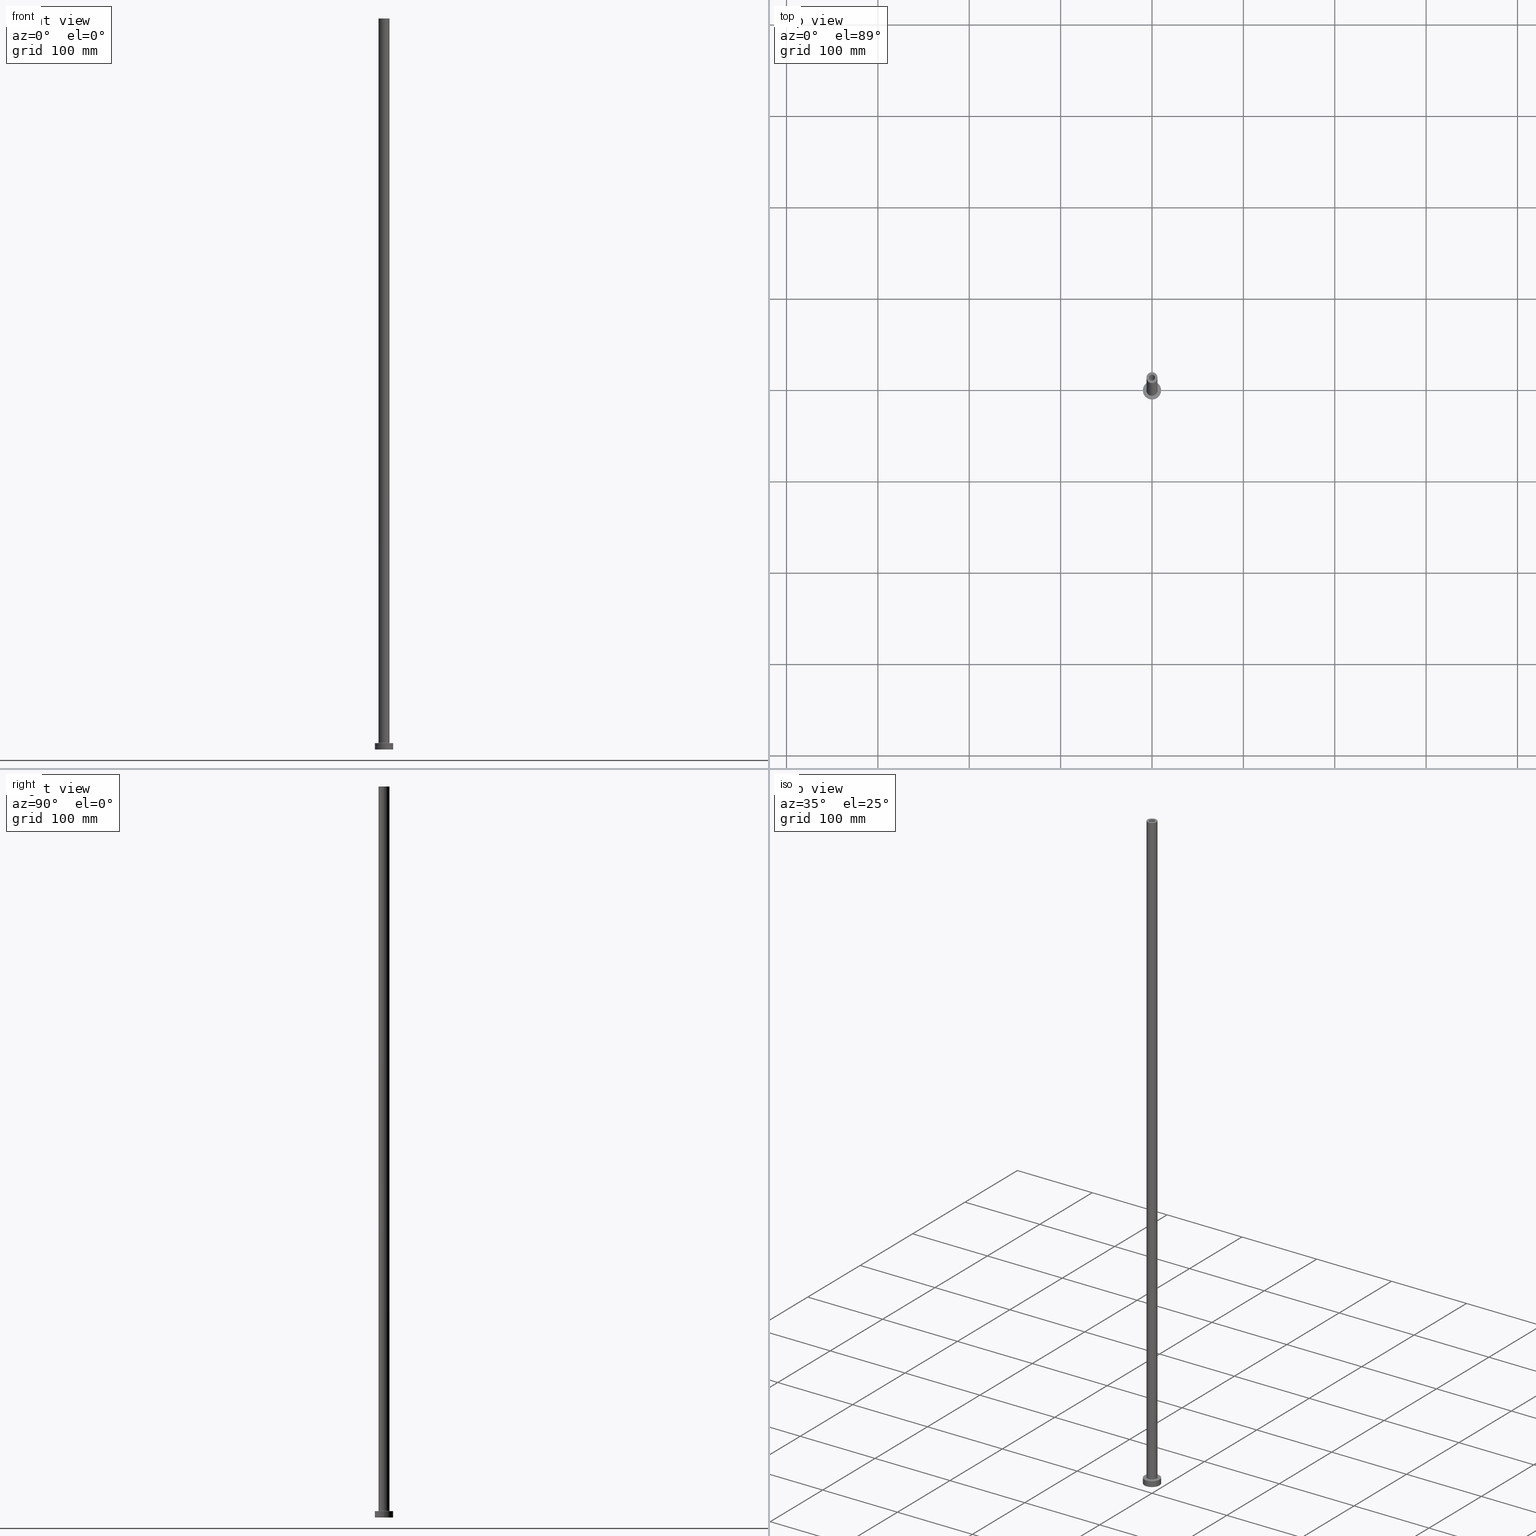
[diagram: canonical four-view strip — front | top / right | iso, engineering-drawing reading convention]
A machine part, canonical four-view strip (front | top / right | iso — engineering-drawing reading convention). The complete STEP part file that produces these views, byte-faithful:
ISO-10303-21;
HEADER;
FILE_DESCRIPTION (( 'STEP AP203' ),
    '1' );
FILE_NAME ('8e6f.STEP',
    '2023-02-13T13:28:46',
    ( '' ),
    ( '' ),
    'SwSTEP 2.0',
    'SolidWorks 2019',
    '' );
FILE_SCHEMA (( 'CONFIG_CONTROL_DESIGN' ));
ENDSEC;

DATA;
#1 = CARTESIAN_POINT ( 'NONE',  ( 0.000000000000000000, 0.000000000000000000, 7.499999999999951150 ) ) ;
#2 = DIRECTION ( 'NONE',  ( 1.000000000000000000, 0.000000000000000000, 0.000000000000000000 ) ) ;
#3 = CARTESIAN_POINT ( 'NONE',  ( 10.00000000000000000, 1.224646799147353256E-15, 7.000000000000000000 ) ) ;
#4 = COORDINATED_UNIVERSAL_TIME_OFFSET ( 1, 0, .AHEAD. ) ;
#5 = EDGE_LOOP ( 'NONE', ( #370, #13, #431, #80 ) ) ;
#6 = DIRECTION ( 'NONE',  ( 1.000000000000000000, 0.000000000000000000, 0.000000000000000000 ) ) ;
#7 = CARTESIAN_POINT ( 'NONE',  ( 0.000000000000000000, 0.000000000000000000, 800.0000000000000000 ) ) ;
#8 = CIRCLE ( 'NONE', #244, 10.00000000000000000 ) ;
#9 = ORIENTED_EDGE ( 'NONE', *, *, #93, .T. ) ;
#10 = EDGE_LOOP ( 'NONE', ( #185, #45 ) ) ;
#11 = ORIENTED_EDGE ( 'NONE', *, *, #269, .F. ) ;
#12 = ORIENTED_EDGE ( 'NONE', *, *, #63, .F. ) ;
#13 = ORIENTED_EDGE ( 'NONE', *, *, #243, .T. ) ;
#14 = CARTESIAN_POINT ( 'NONE',  ( 0.000000000000000000, 0.000000000000000000, 7.499999999999951150 ) ) ;
#15 = CIRCLE ( 'NONE', #72, 3.399999999999999911 ) ;
#16 = EDGE_LOOP ( 'NONE', ( #121, #79, #225, #11 ) ) ;
#17 = CIRCLE ( 'NONE', #53, 3.399999999999999911 ) ;
#18 = DIRECTION ( 'NONE',  ( -1.000000000000000000, 0.000000000000000000, 0.000000000000000000 ) ) ;
#19 = CARTESIAN_POINT ( 'NONE',  ( 3.399999999999999911, 4.163799117100999573E-16, 755.0000000000000000 ) ) ;
#20 = LINE ( 'NONE', #55, #347 ) ;
#21 = AXIS2_PLACEMENT_3D ( 'NONE', #424, #350, #2 ) ;
#22 = CARTESIAN_POINT ( 'NONE',  ( 0.000000000000000000, 0.000000000000000000, 800.0000000000000000 ) ) ;
#23 = DIRECTION ( 'NONE',  ( -1.000000000000000000, 0.000000000000000000, 0.000000000000000000 ) ) ;
#24 = DIRECTION ( 'NONE',  ( 0.000000000000000000, 0.000000000000000000, 1.000000000000000000 ) ) ;
#25 = DIRECTION ( 'NONE',  ( -1.000000000000000000, 0.000000000000000000, 0.000000000000000000 ) ) ;
#26 = CC_DESIGN_DATE_AND_TIME_ASSIGNMENT ( #216, #212, ( #460 ) ) ;
#27 = DIRECTION ( 'NONE',  ( 0.000000000000000000, 0.000000000000000000, 1.000000000000000000 ) ) ;
#28 = AXIS2_PLACEMENT_3D ( 'NONE', #141, #281, #110 ) ;
#29 = DIRECTION ( 'NONE',  ( 0.000000000000000000, -1.000000000000000000, 0.000000000000000000 ) ) ;
#30 = PERSON_AND_ORGANIZATION ( #104, #280 ) ;
#31 = CARTESIAN_POINT ( 'NONE',  ( 0.000000000000000000, 0.000000000000000000, 7.000000000000000000 ) ) ;
#32 = EDGE_CURVE ( 'NONE', #264, #403, #17, .T. ) ;
#33 =( NAMED_UNIT ( * ) SI_UNIT ( $, .STERADIAN. ) SOLID_ANGLE_UNIT ( ) );
#34 = CARTESIAN_POINT ( 'NONE',  ( 0.000000000000000000, 0.000000000000000000, 0.000000000000000000 ) ) ;
#35 = LOCAL_TIME ( 14, 28, 46.00000000000000000, #4 ) ;
#36 = DIRECTION ( 'NONE',  ( -0.000000000000000000, -0.000000000000000000, -1.000000000000000000 ) ) ;
#37 = APPROVAL_STATUS ( 'not_yet_approved' ) ;
#38 = DIRECTION ( 'NONE',  ( -1.000000000000000000, 0.000000000000000000, 0.000000000000000000 ) ) ;
#39 = FACE_OUTER_BOUND ( 'NONE', #40, .T. ) ;
#40 = EDGE_LOOP ( 'NONE', ( #362, #326 ) ) ;
#41 = CC_DESIGN_DATE_AND_TIME_ASSIGNMENT ( #387, #177, ( #438 ) ) ;
#42 = VERTEX_POINT ( 'NONE', #77 ) ;
#43 = VECTOR ( 'NONE', #36, 1000.000000000000000 ) ;
#44 = EDGE_LOOP ( 'NONE', ( #120, #294 ) ) ;
#45 = ORIENTED_EDGE ( 'NONE', *, *, #247, .F. ) ;
#46 = ORIENTED_EDGE ( 'NONE', *, *, #247, .T. ) ;
#47 = DIRECTION ( 'NONE',  ( 1.000000000000000000, 0.000000000000000000, 0.000000000000000000 ) ) ;
#48 = ADVANCED_FACE ( 'NONE', ( #218, #39 ), #323, .T. ) ;
#49 = ORIENTED_EDGE ( 'NONE', *, *, #289, .F. ) ;
#50 = FACE_OUTER_BOUND ( 'NONE', #220, .T. ) ;
#51 = PRODUCT_DEFINITION_SHAPE ( 'NONE', 'NONE',  #460 ) ;
#52 = CIRCLE ( 'NONE', #372, 6.000000000000000888 ) ;
#53 = AXIS2_PLACEMENT_3D ( 'NONE', #363, #253, #394 ) ;
#54 = CARTESIAN_POINT ( 'NONE',  ( 0.000000000000000000, 0.000000000000000000, 800.0000000000000000 ) ) ;
#55 = CARTESIAN_POINT ( 'NONE',  ( 10.00000000000000000, 1.224646799147353256E-15, 7.000000000000000000 ) ) ;
#56 = EDGE_CURVE ( 'NONE', #403, #401, #268, .T. ) ;
#57 = DIRECTION ( 'NONE',  ( -0.000000000000000000, -0.000000000000000000, -1.000000000000000000 ) ) ;
#58 = CARTESIAN_POINT ( 'NONE',  ( -3.250000000000000444, 0.000000000000000000, 800.0000000000000000 ) ) ;
#59 = CIRCLE ( 'NONE', #352, 3.250000000000000444 ) ;
#60 = AXIS2_PLACEMENT_3D ( 'NONE', #404, #443, #376 ) ;
#61 = LINE ( 'NONE', #58, #191 ) ;
#62 = CARTESIAN_POINT ( 'NONE',  ( 0.000000000000000000, 0.000000000000000000, 800.0000000000000000 ) ) ;
#63 = EDGE_CURVE ( 'NONE', #398, #158, #271, .T. ) ;
#64 = DIRECTION ( 'NONE',  ( 1.000000000000000000, 0.000000000000000000, 0.000000000000000000 ) ) ;
#65 = VECTOR ( 'NONE', #161, 1000.000000000000000 ) ;
#66 =( NAMED_UNIT ( * ) PLANE_ANGLE_UNIT ( ) SI_UNIT ( $, .RADIAN. ) );
#67 = APPROVAL ( #353, 'NEUR�EN�' ) ;
#68 = CARTESIAN_POINT ( 'NONE',  ( -3.250000000000000444, 0.000000000000000000, 755.0000000000000000 ) ) ;
#69 = APPROVAL_DATE_TIME ( #391, #78 ) ;
#70 = FACE_OUTER_BOUND ( 'NONE', #254, .T. ) ;
#71 = UNCERTAINTY_MEASURE_WITH_UNIT (LENGTH_MEASURE( 1.000000000000000082E-05 ), #176, 'distance_accuracy_value', 'NONE');
#72 = AXIS2_PLACEMENT_3D ( 'NONE', #383, #27, #446 ) ;
#73 = CARTESIAN_POINT ( 'NONE',  ( 0.000000000000000000, 0.000000000000000000, 0.000000000000000000 ) ) ;
#74 = PERSON_AND_ORGANIZATION ( #104, #280 ) ;
#75 = CIRCLE ( 'NONE', #452, 3.250000000000000444 ) ;
#76 = DIRECTION ( 'NONE',  ( -1.000000000000000000, 1.224646799147351482E-16, 0.000000000000000000 ) ) ;
#77 = CARTESIAN_POINT ( 'NONE',  ( 10.00000000000000000, 1.224646799147353256E-15, 0.000000000000000000 ) ) ;
#78 = APPROVAL ( #37, 'NEUR�EN�' ) ;
#79 = ORIENTED_EDGE ( 'NONE', *, *, #235, .T. ) ;
#80 = ORIENTED_EDGE ( 'NONE', *, *, #165, .F. ) ;
#81 = PRODUCT ( '8e6f', '8e6f', '', ( #246 ) ) ;
#82 = APPROVAL_PERSON_ORGANIZATION ( #174, #78, #278 ) ;
#83 = VERTEX_POINT ( 'NONE', #204 ) ;
#84 = ORIENTED_EDGE ( 'NONE', *, *, #243, .F. ) ;
#85 = ADVANCED_FACE ( 'NONE', ( #101, #100 ), #242, .T. ) ;
#86 = ORIENTED_EDGE ( 'NONE', *, *, #160, .F. ) ;
#87 = ORIENTED_EDGE ( 'NONE', *, *, #235, .F. ) ;
#88 = VERTEX_POINT ( 'NONE', #237 ) ;
#89 = DIRECTION ( 'NONE',  ( -1.000000000000000000, 0.000000000000000000, 0.000000000000000000 ) ) ;
#90 = CIRCLE ( 'NONE', #345, 3.250000000000000444 ) ;
#91 = AXIS2_PLACEMENT_3D ( 'NONE', #62, #203, #25 ) ;
#92 = DIRECTION ( 'NONE',  ( -0.000000000000000000, -0.000000000000000000, -1.000000000000000000 ) ) ;
#93 = EDGE_CURVE ( 'NONE', #88, #227, #90, .T. ) ;
#94 = DIRECTION ( 'NONE',  ( 1.000000000000000000, 0.000000000000000000, 0.000000000000000000 ) ) ;
#95 = DIRECTION ( 'NONE',  ( 0.000000000000000000, 0.000000000000000000, 1.000000000000000000 ) ) ;
#96 = CARTESIAN_POINT ( 'NONE',  ( 0.000000000000000000, 0.000000000000000000, 800.0000000000000000 ) ) ;
#97 = LOCAL_TIME ( 14, 28, 46.00000000000000000, #428 ) ;
#98 = EDGE_CURVE ( 'NONE', #403, #264, #15, .T. ) ;
#99 = APPROVAL_PERSON_ORGANIZATION ( #318, #416, #319 ) ;
#100 = FACE_OUTER_BOUND ( 'NONE', #434, .T. ) ;
#101 = FACE_BOUND ( 'NONE', #188, .T. ) ;
#102 = MANIFOLD_SOLID_BREP ( 'Odebrat vysunut�m4', #213 ) ;
#103 = PERSON_AND_ORGANIZATION ( #104, #280 ) ;
#104 = PERSON ( 'NEUR�EN�', 'NEUR�EN�', 'NEUR�EN�', ('NEUR�EN�'), ('NEUR�EN�'), ('NEUR�EN�') ) ;
#105 = PLANE ( 'NONE',  #175 ) ;
#106 = AXIS2_PLACEMENT_3D ( 'NONE', #408, #331, #94 ) ;
#107 = CALENDAR_DATE ( 2023, 13, 2 ) ;
#108 = CARTESIAN_POINT ( 'NONE',  ( -6.500000000000000888, 7.960204194457796463E-16, 7.499999999999951150 ) ) ;
#109 = APPLICATION_PROTOCOL_DEFINITION ( 'international standard', 'config_control_design', 1994, #453 ) ;
#110 = DIRECTION ( 'NONE',  ( 1.000000000000000000, 0.000000000000000000, 0.000000000000000000 ) ) ;
#111 = CARTESIAN_POINT ( 'NONE',  ( 0.000000000000000000, 0.000000000000000000, 0.000000000000000000 ) ) ;
#112 = ADVANCED_FACE ( 'NONE', ( #166, #378 ), #164, .F. ) ;
#113 = COORDINATED_UNIVERSAL_TIME_OFFSET ( 1, 0, .AHEAD. ) ;
#114 = CIRCLE ( 'NONE', #288, 6.000000000000000888 ) ;
#115 = ORIENTED_EDGE ( 'NONE', *, *, #390, .F. ) ;
#116 = COORDINATED_UNIVERSAL_TIME_OFFSET ( 1, 0, .AHEAD. ) ;
#117 = ORIENTED_EDGE ( 'NONE', *, *, #98, .T. ) ;
#118 = VERTEX_POINT ( 'NONE', #379 ) ;
#119 = EDGE_CURVE ( 'NONE', #88, #180, #61, .T. ) ;
#120 = ORIENTED_EDGE ( 'NONE', *, *, #366, .F. ) ;
#121 = ORIENTED_EDGE ( 'NONE', *, *, #306, .F. ) ;
#122 = VECTOR ( 'NONE', #263, 1000.000000000000000 ) ;
#123 = VERTEX_POINT ( 'NONE', #311 ) ;
#124 = CARTESIAN_POINT ( 'NONE',  ( 0.000000000000000000, 0.000000000000000000, 755.0000000000000000 ) ) ;
#125 = ORIENTED_EDGE ( 'NONE', *, *, #165, .T. ) ;
#126 = DIRECTION ( 'NONE',  ( 0.000000000000000000, 0.000000000000000000, 1.000000000000000000 ) ) ;
#127 = ADVANCED_BREP_SHAPE_REPRESENTATION ( '8e6f', ( #102, #21 ), #367 ) ;
#128 = CARTESIAN_POINT ( 'NONE',  ( -6.000000000000000888, 0.000000000000000000, 800.0000000000000000 ) ) ;
#129 = EDGE_CURVE ( 'NONE', #158, #186, #52, .T. ) ;
#130 = AXIS2_PLACEMENT_3D ( 'NONE', #1, #361, #192 ) ;
#131 = CARTESIAN_POINT ( 'NONE',  ( 0.000000000000000000, 0.000000000000000000, 7.000000000000000000 ) ) ;
#132 = CARTESIAN_POINT ( 'NONE',  ( -10.00000000000000000, 0.000000000000000000, 0.000000000000000000 ) ) ;
#133 = CC_DESIGN_PERSON_AND_ORGANIZATION_ASSIGNMENT ( #276, #144, ( #81 ) ) ;
#134 = DIRECTION ( 'NONE',  ( 0.000000000000000000, 0.000000000000000000, 1.000000000000000000 ) ) ;
#135 = LINE ( 'NONE', #209, #43 ) ;
#136 = CARTESIAN_POINT ( 'NONE',  ( 0.000000000000000000, 0.000000000000000000, 7.000000000000000000 ) ) ;
#137 = DESIGN_CONTEXT ( 'detailed design', #304, 'design' ) ;
#138 = CARTESIAN_POINT ( 'NONE',  ( -3.399999999999999911, 0.000000000000000000, 0.000000000000000000 ) ) ;
#139 = COORDINATED_UNIVERSAL_TIME_OFFSET ( 1, 0, .AHEAD. ) ;
#140 = CIRCLE ( 'NONE', #457, 6.000000000000000888 ) ;
#141 = CARTESIAN_POINT ( 'NONE',  ( 0.000000000000000000, 0.000000000000000000, 800.0000000000000000 ) ) ;
#142 = CIRCLE ( 'NONE', #312, 10.00000000000000000 ) ;
#143 = DIRECTION ( 'NONE',  ( 1.000000000000000000, 0.000000000000000000, -0.000000000000000000 ) ) ;
#144 = PERSON_AND_ORGANIZATION_ROLE ( 'design_owner' ) ;
#145 = EDGE_CURVE ( 'NONE', #190, #83, #297, .T. ) ;
#146 = DIRECTION ( 'NONE',  ( 1.000000000000000000, 0.000000000000000000, 0.000000000000000000 ) ) ;
#147 = DATE_AND_TIME ( #421, #35 ) ;
#148 = ORIENTED_EDGE ( 'NONE', *, *, #32, .T. ) ;
#149 = DIRECTION ( 'NONE',  ( 0.000000000000000000, 0.000000000000000000, 1.000000000000000000 ) ) ;
#150 = ORIENTED_EDGE ( 'NONE', *, *, #447, .T. ) ;
#151 = ADVANCED_FACE ( 'NONE', ( #275 ), #340, .F. ) ;
#152 = VERTEX_POINT ( 'NONE', #132 ) ;
#153 = EDGE_LOOP ( 'NONE', ( #400, #84 ) ) ;
#154 = ORIENTED_EDGE ( 'NONE', *, *, #306, .T. ) ;
#155 = ORIENTED_EDGE ( 'NONE', *, *, #145, .F. ) ;
#156 = DIRECTION ( 'NONE',  ( 0.000000000000000000, 0.000000000000000000, 1.000000000000000000 ) ) ;
#157 = AXIS2_PLACEMENT_3D ( 'NONE', #108, #458, #76 ) ;
#158 = VERTEX_POINT ( 'NONE', #411 ) ;
#159 = DIRECTION ( 'NONE',  ( -0.000000000000000000, -0.000000000000000000, -1.000000000000000000 ) ) ;
#160 = EDGE_CURVE ( 'NONE', #123, #398, #140, .T. ) ;
#161 = DIRECTION ( 'NONE',  ( 0.000000000000000000, 0.000000000000000000, -1.000000000000000000 ) ) ;
#162 = DIRECTION ( 'NONE',  ( -1.000000000000000000, 0.000000000000000000, 0.000000000000000000 ) ) ;
#163 = CIRCLE ( 'NONE', #392, 3.399999999999999911 ) ;
#164 = PLANE ( 'NONE',  #333 ) ;
#165 = EDGE_CURVE ( 'NONE', #256, #180, #59, .T. ) ;
#166 = FACE_BOUND ( 'NONE', #440, .T. ) ;
#167 = CARTESIAN_POINT ( 'NONE',  ( 0.000000000000000000, 0.000000000000000000, 755.0000000000000000 ) ) ;
#168 = LOCAL_TIME ( 14, 28, 46.00000000000000000, #139 ) ;
#169 = DIRECTION ( 'NONE',  ( 1.000000000000000000, 0.000000000000000000, -0.000000000000000000 ) ) ;
#170 = ADVANCED_FACE ( 'NONE', ( #241 ), #382, .F. ) ;
#171 = CARTESIAN_POINT ( 'NONE',  ( 3.250000000000000444, 3.980102097228898231E-16, 800.0000000000000000 ) ) ;
#172 = SECURITY_CLASSIFICATION_LEVEL ( 'unclassified' ) ;
#173 = DIRECTION ( 'NONE',  ( 1.000000000000000000, 0.000000000000000000, 0.000000000000000000 ) ) ;
#174 = PERSON_AND_ORGANIZATION ( #104, #280 ) ;
#175 = AXIS2_PLACEMENT_3D ( 'NONE', #250, #317, #143 ) ;
#176 =( LENGTH_UNIT ( ) NAMED_UNIT ( * ) SI_UNIT ( .MILLI., .METRE. ) );
#177 = DATE_TIME_ROLE ( 'classification_date' ) ;
#178 = EDGE_CURVE ( 'NONE', #83, #152, #135, .T. ) ;
#179 = CARTESIAN_POINT ( 'NONE',  ( 0.000000000000000000, 0.000000000000000000, 800.0000000000000000 ) ) ;
#180 = VERTEX_POINT ( 'NONE', #68 ) ;
#181 = CARTESIAN_POINT ( 'NONE',  ( -3.399999999999999911, 0.000000000000000000, 755.0000000000000000 ) ) ;
#182 = ORIENTED_EDGE ( 'NONE', *, *, #315, .F. ) ;
#183 = EDGE_LOOP ( 'NONE', ( #430, #117, #150, #261 ) ) ;
#184 = CIRCLE ( 'NONE', #267, 10.00000000000000000 ) ;
#185 = ORIENTED_EDGE ( 'NONE', *, *, #194, .F. ) ;
#186 = VERTEX_POINT ( 'NONE', #351 ) ;
#187 = VERTEX_POINT ( 'NONE', #138 ) ;
#188 = EDGE_LOOP ( 'NONE', ( #287, #298 ) ) ;
#189 = LINE ( 'NONE', #337, #65 ) ;
#190 = VERTEX_POINT ( 'NONE', #3 ) ;
#191 = VECTOR ( 'NONE', #448, 1000.000000000000000 ) ;
#192 = DIRECTION ( 'NONE',  ( 1.000000000000000000, 0.000000000000000000, 0.000000000000000000 ) ) ;
#193 = AXIS2_PLACEMENT_3D ( 'NONE', #320, #455, #252 ) ;
#194 = EDGE_CURVE ( 'NONE', #152, #42, #184, .T. ) ;
#195 = CC_DESIGN_APPROVAL ( #416, ( #438 ) ) ;
#196 = FACE_OUTER_BOUND ( 'NONE', #301, .T. ) ;
#197 = CYLINDRICAL_SURFACE ( 'NONE', #419, 10.00000000000000000 ) ;
#198 = ADVANCED_FACE ( 'NONE', ( #423, #389 ), #105, .F. ) ;
#199 = DIRECTION ( 'NONE',  ( -0.000000000000000000, -0.000000000000000000, -1.000000000000000000 ) ) ;
#200 = DIRECTION ( 'NONE',  ( -0.000000000000000000, -0.000000000000000000, -1.000000000000000000 ) ) ;
#201 = CIRCLE ( 'NONE', #157, 0.5000000000000004441 ) ;
#202 = CARTESIAN_POINT ( 'NONE',  ( 0.000000000000000000, 0.000000000000000000, 755.0000000000000000 ) ) ;
#203 = DIRECTION ( 'NONE',  ( 0.000000000000000000, 0.000000000000000000, -1.000000000000000000 ) ) ;
#204 = CARTESIAN_POINT ( 'NONE',  ( -10.00000000000000000, 0.000000000000000000, 7.000000000000000000 ) ) ;
#205 = CC_DESIGN_PERSON_AND_ORGANIZATION_ASSIGNMENT ( #456, #459, ( #438 ) ) ;
#206 = TOROIDAL_SURFACE ( 'NONE', #130, 6.500000000000000888, 0.5000000000000000000 ) ;
#207 = DIRECTION ( 'NONE',  ( -0.000000000000000000, -0.000000000000000000, -1.000000000000000000 ) ) ;
#208 = PERSON_AND_ORGANIZATION_ROLE ( 'creator' ) ;
#209 = CARTESIAN_POINT ( 'NONE',  ( -10.00000000000000000, 0.000000000000000000, 7.000000000000000000 ) ) ;
#210 = EDGE_CURVE ( 'NONE', #401, #187, #163, .T. ) ;
#211 = VECTOR ( 'NONE', #449, 1000.000000000000000 ) ;
#212 = DATE_TIME_ROLE ( 'creation_date' ) ;
#213 = CLOSED_SHELL ( 'NONE', ( #358, #310, #441, #396, #279, #343, #85, #198, #262, #48, #296, #151, #112, #170 ) ) ;
#214 = VECTOR ( 'NONE', #159, 1000.000000000000000 ) ;
#215 = DIRECTION ( 'NONE',  ( 1.000000000000000000, 0.000000000000000000, 0.000000000000000000 ) ) ;
#216 = DATE_AND_TIME ( #418, #354 ) ;
#217 = FACE_OUTER_BOUND ( 'NONE', #321, .T. ) ;
#218 = FACE_BOUND ( 'NONE', #153, .T. ) ;
#219 = ORIENTED_EDGE ( 'NONE', *, *, #447, .F. ) ;
#220 = EDGE_LOOP ( 'NONE', ( #182, #115, #257, #429 ) ) ;
#221 = PRODUCT_RELATED_PRODUCT_CATEGORY ( 'detail', '', ( #81 ) ) ;
#222 = AXIS2_PLACEMENT_3D ( 'NONE', #22, #371, #89 ) ;
#223 = ORIENTED_EDGE ( 'NONE', *, *, #178, .F. ) ;
#224 = ORIENTED_EDGE ( 'NONE', *, *, #315, .T. ) ;
#225 = ORIENTED_EDGE ( 'NONE', *, *, #255, .F. ) ;
#226 = EDGE_LOOP ( 'NONE', ( #436, #369 ) ) ;
#227 = VERTEX_POINT ( 'NONE', #171 ) ;
#228 = CYLINDRICAL_SURFACE ( 'NONE', #272, 3.399999999999999911 ) ;
#229 = EDGE_CURVE ( 'NONE', #398, #123, #413, .T. ) ;
#230 = ORIENTED_EDGE ( 'NONE', *, *, #56, .T. ) ;
#231 = FACE_OUTER_BOUND ( 'NONE', #258, .T. ) ;
#232 = AXIS2_PLACEMENT_3D ( 'NONE', #54, #57, #236 ) ;
#233 = CC_DESIGN_SECURITY_CLASSIFICATION ( #438, ( #437 ) ) ;
#234 = FACE_OUTER_BOUND ( 'NONE', #397, .T. ) ;
#235 = EDGE_CURVE ( 'NONE', #186, #364, #201, .T. ) ;
#236 = DIRECTION ( 'NONE',  ( -1.000000000000000000, 0.000000000000000000, 0.000000000000000000 ) ) ;
#237 = CARTESIAN_POINT ( 'NONE',  ( -3.250000000000000444, 0.000000000000000000, 800.0000000000000000 ) ) ;
#238 = AXIS2_PLACEMENT_3D ( 'NONE', #450, #415, #23 ) ;
#239 = DIRECTION ( 'NONE',  ( 0.000000000000000000, 0.000000000000000000, 1.000000000000000000 ) ) ;
#240 = APPROVAL_PERSON_ORGANIZATION ( #348, #67, #357 ) ;
#241 = FACE_OUTER_BOUND ( 'NONE', #5, .T. ) ;
#242 = PLANE ( 'NONE',  #251 ) ;
#243 = EDGE_CURVE ( 'NONE', #227, #88, #334, .T. ) ;
#244 = AXIS2_PLACEMENT_3D ( 'NONE', #305, #156, #47 ) ;
#245 = DIRECTION ( 'NONE',  ( -0.000000000000000000, -0.000000000000000000, -1.000000000000000000 ) ) ;
#246 = MECHANICAL_CONTEXT ( 'NONE', #453, 'mechanical' ) ;
#247 = EDGE_CURVE ( 'NONE', #42, #152, #142, .T. ) ;
#248 = DIRECTION ( 'NONE',  ( 0.000000000000000000, 0.000000000000000000, -1.000000000000000000 ) ) ;
#249 = APPLICATION_PROTOCOL_DEFINITION ( 'international standard', 'config_control_design', 1994, #304 ) ;
#250 = CARTESIAN_POINT ( 'NONE',  ( 0.000000000000000000, 0.000000000000000000, 0.000000000000000000 ) ) ;
#251 = AXIS2_PLACEMENT_3D ( 'NONE', #131, #95, #308 ) ;
#252 = DIRECTION ( 'NONE',  ( 1.000000000000000000, 0.000000000000000000, 0.000000000000000000 ) ) ;
#253 = DIRECTION ( 'NONE',  ( 0.000000000000000000, 0.000000000000000000, 1.000000000000000000 ) ) ;
#254 = EDGE_LOOP ( 'NONE', ( #87, #327, #260, #49 ) ) ;
#255 = EDGE_CURVE ( 'NONE', #118, #364, #444, .T. ) ;
#256 = VERTEX_POINT ( 'NONE', #393 ) ;
#257 = ORIENTED_EDGE ( 'NONE', *, *, #178, .T. ) ;
#258 = EDGE_LOOP ( 'NONE', ( #324, #399, #432, #365 ) ) ;
#259 = AXIS2_PLACEMENT_3D ( 'NONE', #349, #245, #388 ) ;
#260 = ORIENTED_EDGE ( 'NONE', *, *, #269, .T. ) ;
#261 = ORIENTED_EDGE ( 'NONE', *, *, #366, .T. ) ;
#262 = ADVANCED_FACE ( 'NONE', ( #217 ), #277, .T. ) ;
#263 = DIRECTION ( 'NONE',  ( 0.000000000000000000, 0.000000000000000000, -1.000000000000000000 ) ) ;
#264 = VERTEX_POINT ( 'NONE', #181 ) ;
#265 = DIRECTION ( 'NONE',  ( 0.000000000000000000, 0.000000000000000000, 1.000000000000000000 ) ) ;
#266 = CYLINDRICAL_SURFACE ( 'NONE', #232, 6.000000000000000888 ) ;
#267 = AXIS2_PLACEMENT_3D ( 'NONE', #34, #356, #146 ) ;
#268 = LINE ( 'NONE', #414, #211 ) ;
#269 = EDGE_CURVE ( 'NONE', #158, #118, #381, .T. ) ;
#270 = CARTESIAN_POINT ( 'NONE',  ( 0.000000000000000000, 0.000000000000000000, 800.0000000000000000 ) ) ;
#271 = LINE ( 'NONE', #409, #427 ) ;
#272 = AXIS2_PLACEMENT_3D ( 'NONE', #377, #407, #18 ) ;
#273 = CC_DESIGN_PERSON_AND_ORGANIZATION_ASSIGNMENT ( #74, #208, ( #460 ) ) ;
#274 = DIRECTION ( 'NONE',  ( 1.000000000000000000, 0.000000000000000000, 0.000000000000000000 ) ) ;
#275 = FACE_OUTER_BOUND ( 'NONE', #183, .T. ) ;
#276 = PERSON_AND_ORGANIZATION ( #104, #280 ) ;
#277 = CYLINDRICAL_SURFACE ( 'NONE', #380, 6.000000000000000888 ) ;
#278 = APPROVAL_ROLE ( '' ) ;
#279 = ADVANCED_FACE ( 'NONE', ( #314 ), #417, .T. ) ;
#280 = ORGANIZATION ( 'NEUR�EN�', 'NEUR�EN�', '' ) ;
#281 = DIRECTION ( 'NONE',  ( 0.000000000000000000, 0.000000000000000000, 1.000000000000000000 ) ) ;
#282 = DIRECTION ( 'NONE',  ( -0.000000000000000000, -0.000000000000000000, -1.000000000000000000 ) ) ;
#283 = CALENDAR_DATE ( 2023, 13, 2 ) ;
#284 = DATE_AND_TIME ( #433, #355 ) ;
#285 = DIRECTION ( 'NONE',  ( 1.000000000000000000, 0.000000000000000000, 0.000000000000000000 ) ) ;
#286 = APPROVAL_DATE_TIME ( #147, #67 ) ;
#287 = ORIENTED_EDGE ( 'NONE', *, *, #255, .T. ) ;
#288 = AXIS2_PLACEMENT_3D ( 'NONE', #14, #265, #335 ) ;
#289 = EDGE_CURVE ( 'NONE', #364, #118, #307, .T. ) ;
#290 = DIRECTION ( 'NONE',  ( 1.000000000000000000, 0.000000000000000000, -0.000000000000000000 ) ) ;
#291 = ORIENTED_EDGE ( 'NONE', *, *, #145, .T. ) ;
#292 = ORIENTED_EDGE ( 'NONE', *, *, #328, .T. ) ;
#293 = APPROVAL_DATE_TIME ( #284, #416 ) ;
#294 = ORIENTED_EDGE ( 'NONE', *, *, #210, .F. ) ;
#295 = ORIENTED_EDGE ( 'NONE', *, *, #410, .F. ) ;
#296 = ADVANCED_FACE ( 'NONE', ( #70 ), #206, .F. ) ;
#297 = CIRCLE ( 'NONE', #338, 10.00000000000000000 ) ;
#298 = ORIENTED_EDGE ( 'NONE', *, *, #289, .T. ) ;
#299 = CC_DESIGN_APPROVAL ( #67, ( #437 ) ) ;
#300 = CARTESIAN_POINT ( 'NONE',  ( 3.399999999999999911, 4.163799117100999573E-16, 0.000000000000000000 ) ) ;
#301 = EDGE_LOOP ( 'NONE', ( #9, #368, #295, #330 ) ) ;
#302 = CYLINDRICAL_SURFACE ( 'NONE', #222, 3.250000000000000444 ) ;
#303 = LINE ( 'NONE', #439, #122 ) ;
#304 = APPLICATION_CONTEXT ( 'configuration controlled 3d designs of mechanical parts and assemblies' ) ;
#305 = CARTESIAN_POINT ( 'NONE',  ( 0.000000000000000000, 0.000000000000000000, 7.000000000000000000 ) ) ;
#306 = EDGE_CURVE ( 'NONE', #186, #158, #114, .T. ) ;
#307 = CIRCLE ( 'NONE', #325, 6.500000000000000888 ) ;
#308 = DIRECTION ( 'NONE',  ( 1.000000000000000000, 0.000000000000000000, -0.000000000000000000 ) ) ;
#309 = DIRECTION ( 'NONE',  ( 1.000000000000000000, 0.000000000000000000, 0.000000000000000000 ) ) ;
#310 = ADVANCED_FACE ( 'NONE', ( #234 ), #228, .F. ) ;
#311 = CARTESIAN_POINT ( 'NONE',  ( -6.000000000000000888, 0.000000000000000000, 800.0000000000000000 ) ) ;
#312 = AXIS2_PLACEMENT_3D ( 'NONE', #111, #420, #6 ) ;
#313 = CARTESIAN_POINT ( 'NONE',  ( 0.000000000000000000, 0.000000000000000000, 7.499999999999951150 ) ) ;
#314 = FACE_OUTER_BOUND ( 'NONE', #395, .T. ) ;
#315 = EDGE_CURVE ( 'NONE', #190, #42, #20, .T. ) ;
#316 = PERSON_AND_ORGANIZATION_ROLE ( 'design_supplier' ) ;
#317 = DIRECTION ( 'NONE',  ( 0.000000000000000000, 0.000000000000000000, 1.000000000000000000 ) ) ;
#318 = PERSON_AND_ORGANIZATION ( #104, #280 ) ;
#319 = APPROVAL_ROLE ( '' ) ;
#320 = CARTESIAN_POINT ( 'NONE',  ( 0.000000000000000000, 0.000000000000000000, 7.000000000000000000 ) ) ;
#321 = EDGE_LOOP ( 'NONE', ( #12, #86, #292, #154 ) ) ;
#322 = CARTESIAN_POINT ( 'NONE',  ( 6.500000000000000888, 0.000000000000000000, 7.499999999999951150 ) ) ;
#323 = PLANE ( 'NONE',  #451 ) ;
#324 = ORIENTED_EDGE ( 'NONE', *, *, #229, .F. ) ;
#325 = AXIS2_PLACEMENT_3D ( 'NONE', #31, #207, #173 ) ;
#326 = ORIENTED_EDGE ( 'NONE', *, *, #229, .T. ) ;
#327 = ORIENTED_EDGE ( 'NONE', *, *, #129, .F. ) ;
#328 = EDGE_CURVE ( 'NONE', #123, #186, #339, .T. ) ;
#329 = ORIENTED_EDGE ( 'NONE', *, *, #210, .T. ) ;
#330 = ORIENTED_EDGE ( 'NONE', *, *, #119, .F. ) ;
#331 = DIRECTION ( 'NONE',  ( 0.000000000000000000, 0.000000000000000000, 1.000000000000000000 ) ) ;
#332 = ORIENTED_EDGE ( 'NONE', *, *, #390, .T. ) ;
#333 = AXIS2_PLACEMENT_3D ( 'NONE', #202, #239, #169 ) ;
#334 = CIRCLE ( 'NONE', #373, 3.250000000000000444 ) ;
#335 = DIRECTION ( 'NONE',  ( 1.000000000000000000, 0.000000000000000000, 0.000000000000000000 ) ) ;
#336 = CARTESIAN_POINT ( 'NONE',  ( -6.500000000000000888, 7.960204194457796463E-16, 6.999999999999975131 ) ) ;
#337 = CARTESIAN_POINT ( 'NONE',  ( 3.250000000000000444, 3.980102097228898231E-16, 800.0000000000000000 ) ) ;
#338 = AXIS2_PLACEMENT_3D ( 'NONE', #136, #134, #274 ) ;
#339 = LINE ( 'NONE', #128, #214 ) ;
#340 = CYLINDRICAL_SURFACE ( 'NONE', #238, 3.399999999999999911 ) ;
#341 = CC_DESIGN_APPROVAL ( #78, ( #460 ) ) ;
#342 = DIRECTION ( 'NONE',  ( 1.000000000000000000, 0.000000000000000000, 0.000000000000000000 ) ) ;
#343 = ADVANCED_FACE ( 'NONE', ( #50 ), #197, .T. ) ;
#344 = DIRECTION ( 'NONE',  ( 0.000000000000000000, 0.000000000000000000, 1.000000000000000000 ) ) ;
#345 = AXIS2_PLACEMENT_3D ( 'NONE', #270, #346, #64 ) ;
#346 = DIRECTION ( 'NONE',  ( 0.000000000000000000, 0.000000000000000000, 1.000000000000000000 ) ) ;
#347 = VECTOR ( 'NONE', #199, 1000.000000000000000 ) ;
#348 = PERSON_AND_ORGANIZATION ( #104, #280 ) ;
#349 = CARTESIAN_POINT ( 'NONE',  ( 0.000000000000000000, 0.000000000000000000, 7.000000000000000000 ) ) ;
#350 = DIRECTION ( 'NONE',  ( 0.000000000000000000, 0.000000000000000000, 1.000000000000000000 ) ) ;
#351 = CARTESIAN_POINT ( 'NONE',  ( -6.000000000000000888, 0.000000000000000000, 7.499999999999951150 ) ) ;
#352 = AXIS2_PLACEMENT_3D ( 'NONE', #167, #24, #309 ) ;
#353 = APPROVAL_STATUS ( 'not_yet_approved' ) ;
#354 = LOCAL_TIME ( 14, 28, 46.00000000000000000, #113 ) ;
#355 = LOCAL_TIME ( 14, 28, 46.00000000000000000, #116 ) ;
#356 = DIRECTION ( 'NONE',  ( 0.000000000000000000, 0.000000000000000000, 1.000000000000000000 ) ) ;
#357 = APPROVAL_ROLE ( '' ) ;
#358 = ADVANCED_FACE ( 'NONE', ( #196 ), #302, .F. ) ;
#359 = APPROVAL_STATUS ( 'not_yet_approved' ) ;
#360 = CARTESIAN_POINT ( 'NONE',  ( 0.000000000000000000, 0.000000000000000000, 800.0000000000000000 ) ) ;
#361 = DIRECTION ( 'NONE',  ( 0.000000000000000000, 0.000000000000000000, 1.000000000000000000 ) ) ;
#362 = ORIENTED_EDGE ( 'NONE', *, *, #160, .T. ) ;
#363 = CARTESIAN_POINT ( 'NONE',  ( 0.000000000000000000, 0.000000000000000000, 755.0000000000000000 ) ) ;
#364 = VERTEX_POINT ( 'NONE', #336 ) ;
#365 = ORIENTED_EDGE ( 'NONE', *, *, #328, .F. ) ;
#366 = EDGE_CURVE ( 'NONE', #187, #401, #461, .T. ) ;
#367 =( GEOMETRIC_REPRESENTATION_CONTEXT ( 3 ) GLOBAL_UNCERTAINTY_ASSIGNED_CONTEXT ( ( #71 ) ) GLOBAL_UNIT_ASSIGNED_CONTEXT ( ( #176, #66, #33 ) ) REPRESENTATION_CONTEXT ( 'NONE', 'WORKASPACE' ) );
#368 = ORIENTED_EDGE ( 'NONE', *, *, #422, .T. ) ;
#369 = ORIENTED_EDGE ( 'NONE', *, *, #98, .F. ) ;
#370 = ORIENTED_EDGE ( 'NONE', *, *, #422, .F. ) ;
#371 = DIRECTION ( 'NONE',  ( 0.000000000000000000, 0.000000000000000000, -1.000000000000000000 ) ) ;
#372 = AXIS2_PLACEMENT_3D ( 'NONE', #313, #412, #454 ) ;
#373 = AXIS2_PLACEMENT_3D ( 'NONE', #179, #386, #215 ) ;
#374 = DIRECTION ( 'NONE',  ( 1.000000000000000000, 0.000000000000000000, 0.000000000000000000 ) ) ;
#375 = CC_DESIGN_PERSON_AND_ORGANIZATION_ASSIGNMENT ( #30, #316, ( #437 ) ) ;
#376 = DIRECTION ( 'NONE',  ( 1.000000000000000000, 0.000000000000000000, 0.000000000000000000 ) ) ;
#377 = CARTESIAN_POINT ( 'NONE',  ( 0.000000000000000000, 0.000000000000000000, 764.6166522241369421 ) ) ;
#378 = FACE_OUTER_BOUND ( 'NONE', #226, .T. ) ;
#379 = CARTESIAN_POINT ( 'NONE',  ( 6.500000000000000888, 0.000000000000000000, 6.999999999999975131 ) ) ;
#380 = AXIS2_PLACEMENT_3D ( 'NONE', #360, #282, #38 ) ;
#381 = CIRCLE ( 'NONE', #406, 0.5000000000000004441 ) ;
#382 = CYLINDRICAL_SURFACE ( 'NONE', #91, 3.250000000000000444 ) ;
#383 = CARTESIAN_POINT ( 'NONE',  ( 0.000000000000000000, 0.000000000000000000, 755.0000000000000000 ) ) ;
#384 = PERSON_AND_ORGANIZATION_ROLE ( 'creator' ) ;
#385 = TOROIDAL_SURFACE ( 'NONE', #106, 6.500000000000000888, 0.5000000000000000000 ) ;
#386 = DIRECTION ( 'NONE',  ( 0.000000000000000000, 0.000000000000000000, 1.000000000000000000 ) ) ;
#387 = DATE_AND_TIME ( #107, #168 ) ;
#388 = DIRECTION ( 'NONE',  ( -1.000000000000000000, 0.000000000000000000, 0.000000000000000000 ) ) ;
#389 = FACE_OUTER_BOUND ( 'NONE', #10, .T. ) ;
#390 = EDGE_CURVE ( 'NONE', #83, #190, #8, .T. ) ;
#391 = DATE_AND_TIME ( #283, #97 ) ;
#392 = AXIS2_PLACEMENT_3D ( 'NONE', #73, #426, #285 ) ;
#393 = CARTESIAN_POINT ( 'NONE',  ( 3.250000000000000444, 3.980102097228898231E-16, 755.0000000000000000 ) ) ;
#394 = DIRECTION ( 'NONE',  ( 1.000000000000000000, 0.000000000000000000, 0.000000000000000000 ) ) ;
#395 = EDGE_LOOP ( 'NONE', ( #155, #224, #46, #223 ) ) ;
#396 = ADVANCED_FACE ( 'NONE', ( #231 ), #266, .T. ) ;
#397 = EDGE_LOOP ( 'NONE', ( #148, #230, #329, #219 ) ) ;
#398 = VERTEX_POINT ( 'NONE', #442 ) ;
#399 = ORIENTED_EDGE ( 'NONE', *, *, #63, .T. ) ;
#400 = ORIENTED_EDGE ( 'NONE', *, *, #93, .F. ) ;
#401 = VERTEX_POINT ( 'NONE', #300 ) ;
#402 = CARTESIAN_POINT ( 'NONE',  ( 0.000000000000000000, 0.000000000000000000, 7.000000000000000000 ) ) ;
#403 = VERTEX_POINT ( 'NONE', #19 ) ;
#404 = CARTESIAN_POINT ( 'NONE',  ( 0.000000000000000000, 0.000000000000000000, 0.000000000000000000 ) ) ;
#405 = CC_DESIGN_PERSON_AND_ORGANIZATION_ASSIGNMENT ( #103, #384, ( #437 ) ) ;
#406 = AXIS2_PLACEMENT_3D ( 'NONE', #322, #29, #248 ) ;
#407 = DIRECTION ( 'NONE',  ( 0.000000000000000000, 0.000000000000000000, -1.000000000000000000 ) ) ;
#408 = CARTESIAN_POINT ( 'NONE',  ( 0.000000000000000000, 0.000000000000000000, 7.499999999999951150 ) ) ;
#409 = CARTESIAN_POINT ( 'NONE',  ( 6.000000000000000888, 7.347880794884120722E-16, 800.0000000000000000 ) ) ;
#410 = EDGE_CURVE ( 'NONE', #180, #256, #75, .T. ) ;
#411 = CARTESIAN_POINT ( 'NONE',  ( 6.000000000000000888, 7.347880794884120722E-16, 7.499999999999951150 ) ) ;
#412 = DIRECTION ( 'NONE',  ( 0.000000000000000000, 0.000000000000000000, 1.000000000000000000 ) ) ;
#413 = CIRCLE ( 'NONE', #28, 6.000000000000000888 ) ;
#414 = CARTESIAN_POINT ( 'NONE',  ( 3.399999999999999911, 4.163799117100999573E-16, 764.6166522241369421 ) ) ;
#415 = DIRECTION ( 'NONE',  ( 0.000000000000000000, 0.000000000000000000, -1.000000000000000000 ) ) ;
#416 = APPROVAL ( #359, 'NEUR�EN�' ) ;
#417 = CYLINDRICAL_SURFACE ( 'NONE', #259, 10.00000000000000000 ) ;
#418 = CALENDAR_DATE ( 2023, 13, 2 ) ;
#419 = AXIS2_PLACEMENT_3D ( 'NONE', #402, #92, #162 ) ;
#420 = DIRECTION ( 'NONE',  ( 0.000000000000000000, 0.000000000000000000, 1.000000000000000000 ) ) ;
#421 = CALENDAR_DATE ( 2023, 13, 2 ) ;
#422 = EDGE_CURVE ( 'NONE', #227, #256, #189, .T. ) ;
#423 = FACE_BOUND ( 'NONE', #44, .T. ) ;
#424 = CARTESIAN_POINT ( 'NONE',  ( 0.000000000000000000, 0.000000000000000000, 0.000000000000000000 ) ) ;
#425 = SHAPE_DEFINITION_REPRESENTATION ( #51, #127 ) ;
#426 = DIRECTION ( 'NONE',  ( -0.000000000000000000, -0.000000000000000000, -1.000000000000000000 ) ) ;
#427 = VECTOR ( 'NONE', #200, 1000.000000000000000 ) ;
#428 = COORDINATED_UNIVERSAL_TIME_OFFSET ( 1, 0, .AHEAD. ) ;
#429 = ORIENTED_EDGE ( 'NONE', *, *, #194, .T. ) ;
#430 = ORIENTED_EDGE ( 'NONE', *, *, #56, .F. ) ;
#431 = ORIENTED_EDGE ( 'NONE', *, *, #119, .T. ) ;
#432 = ORIENTED_EDGE ( 'NONE', *, *, #129, .T. ) ;
#433 = CALENDAR_DATE ( 2023, 13, 2 ) ;
#434 = EDGE_LOOP ( 'NONE', ( #332, #291 ) ) ;
#435 = ORIENTED_EDGE ( 'NONE', *, *, #410, .T. ) ;
#436 = ORIENTED_EDGE ( 'NONE', *, *, #32, .F. ) ;
#437 = PRODUCT_DEFINITION_FORMATION_WITH_SPECIFIED_SOURCE ( 'LIBOVOLN�', '', #81, .NOT_KNOWN. ) ;
#438 = SECURITY_CLASSIFICATION ( '', '', #172 ) ;
#439 = CARTESIAN_POINT ( 'NONE',  ( -3.399999999999999911, 0.000000000000000000, 764.6166522241369421 ) ) ;
#440 = EDGE_LOOP ( 'NONE', ( #435, #125 ) ) ;
#441 = ADVANCED_FACE ( 'NONE', ( #445 ), #385, .F. ) ;
#442 = CARTESIAN_POINT ( 'NONE',  ( 6.000000000000000888, 7.347880794884120722E-16, 800.0000000000000000 ) ) ;
#443 = DIRECTION ( 'NONE',  ( -0.000000000000000000, -0.000000000000000000, -1.000000000000000000 ) ) ;
#444 = CIRCLE ( 'NONE', #193, 6.500000000000000888 ) ;
#445 = FACE_OUTER_BOUND ( 'NONE', #16, .T. ) ;
#446 = DIRECTION ( 'NONE',  ( 1.000000000000000000, 0.000000000000000000, 0.000000000000000000 ) ) ;
#447 = EDGE_CURVE ( 'NONE', #264, #187, #303, .T. ) ;
#448 = DIRECTION ( 'NONE',  ( 0.000000000000000000, 0.000000000000000000, -1.000000000000000000 ) ) ;
#449 = DIRECTION ( 'NONE',  ( 0.000000000000000000, 0.000000000000000000, -1.000000000000000000 ) ) ;
#450 = CARTESIAN_POINT ( 'NONE',  ( 0.000000000000000000, 0.000000000000000000, 764.6166522241369421 ) ) ;
#451 = AXIS2_PLACEMENT_3D ( 'NONE', #7, #149, #290 ) ;
#452 = AXIS2_PLACEMENT_3D ( 'NONE', #124, #126, #374 ) ;
#453 = APPLICATION_CONTEXT ( 'configuration controlled 3d designs of mechanical parts and assemblies' ) ;
#454 = DIRECTION ( 'NONE',  ( 1.000000000000000000, 0.000000000000000000, 0.000000000000000000 ) ) ;
#455 = DIRECTION ( 'NONE',  ( -0.000000000000000000, -0.000000000000000000, -1.000000000000000000 ) ) ;
#456 = PERSON_AND_ORGANIZATION ( #104, #280 ) ;
#457 = AXIS2_PLACEMENT_3D ( 'NONE', #96, #344, #342 ) ;
#458 = DIRECTION ( 'NONE',  ( 1.224646799147353207E-16, 1.000000000000000000, -0.000000000000000000 ) ) ;
#459 = PERSON_AND_ORGANIZATION_ROLE ( 'classification_officer' ) ;
#460 = PRODUCT_DEFINITION ( 'NEZN�M�', '', #437, #137 ) ;
#461 = CIRCLE ( 'NONE', #60, 3.399999999999999911 ) ;
ENDSEC;
END-ISO-10303-21;
